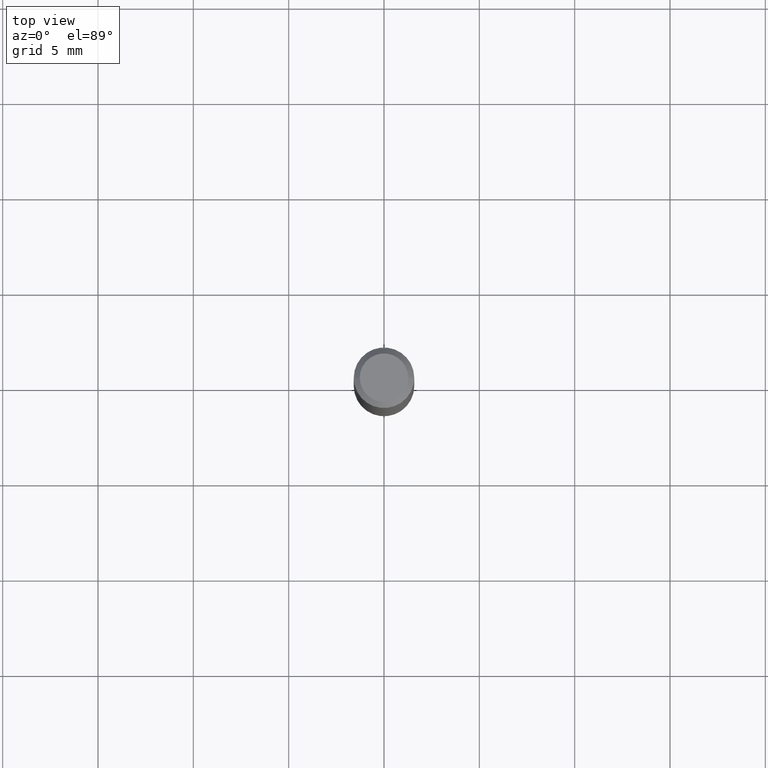
[diagram: clean part render]
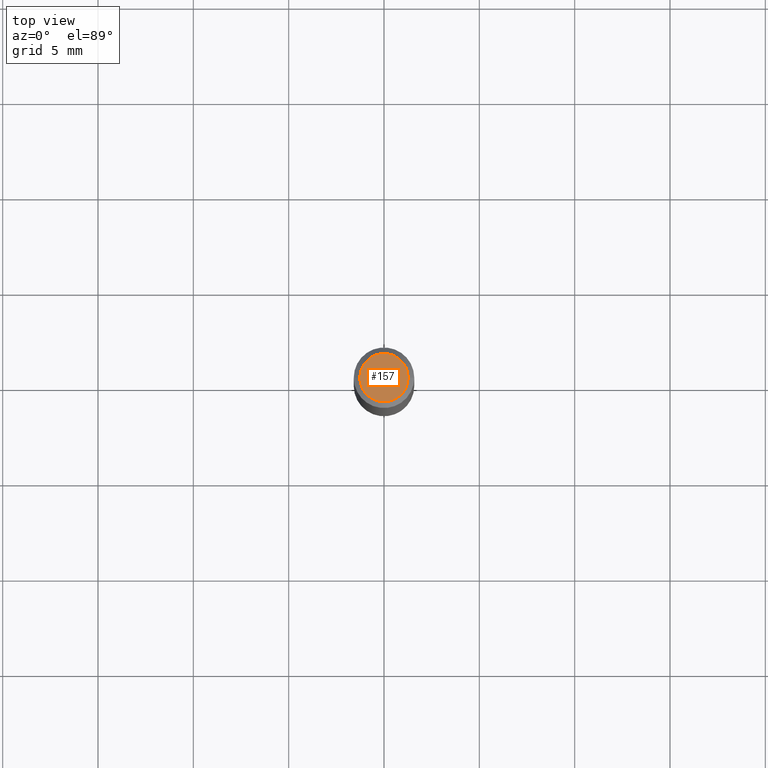
[diagram: same view with one face highlighted and labeled with its STEP entity id]
A machine part, top view. The second image highlights one B-rep face of the part: STEP entity #157.
In plain terms, the highlighted planar face has unit normal (0, -0, -1).
Its self-contained STEP definition (entity closure, byte-faithful):
#9 = ORIENTED_EDGE ( 'NONE', *, *, #75, .T. ) ;
#10 = CARTESIAN_POINT ( 'NONE',  ( 3.893286209682126177E-47, -5.558580879666067980E-33, -1.592040838891559689E-18 ) ) ;
#50 = EDGE_CURVE ( 'NONE', #115, #68, #438, .T. ) ;
#51 = ORIENTED_EDGE ( 'NONE', *, *, #50, .T. ) ;
#57 = CIRCLE ( 'NONE', #487, 0.04999999999999999584 ) ;
#68 = VERTEX_POINT ( 'NONE', #160 ) ;
#75 = EDGE_CURVE ( 'NONE', #68, #115, #57, .T. ) ;
#115 = VERTEX_POINT ( 'NONE', #230 ) ;
#126 = DIRECTION ( 'NONE',  ( 1.000000000000000000, -6.982962677686265922E-15, 4.875957971899673662E-29 ) ) ;
#139 = AXIS2_PLACEMENT_3D ( 'NONE', #364, #445, #300 ) ;
#157 = ADVANCED_FACE ( 'NONE', ( #353 ), #269, .F. ) ;
#159 = DIRECTION ( 'NONE',  ( -2.445468806185136597E-29, 3.491481338843145583E-15, 1.000000000000000000 ) ) ;
#160 = CARTESIAN_POINT ( 'NONE',  ( 0.04999999999999999584, -4.077247707424184212E-16, -1.592040838888913461E-18 ) ) ;
#230 = CARTESIAN_POINT ( 'NONE',  ( -0.04999999999999999584, 3.709698922520826725E-16, -1.592040838894077649E-18 ) ) ;
#269 = PLANE ( 'NONE',  #139 ) ;
#300 = DIRECTION ( 'NONE',  ( -1.000000000000000000, 6.982962677686265922E-15, -4.876176775795935793E-29 ) ) ;
#326 = AXIS2_PLACEMENT_3D ( 'NONE', #10, #159, #376 ) ;
#353 = FACE_OUTER_BOUND ( 'NONE', #374, .T. ) ;
#364 = CARTESIAN_POINT ( 'NONE',  ( 1.946643104841063088E-47, -2.779290439833033990E-33, -7.960204194457798443E-19 ) ) ;
#374 = EDGE_LOOP ( 'NONE', ( #51, #9 ) ) ;
#376 = DIRECTION ( 'NONE',  ( 1.000000000000000000, -6.982962677686265922E-15, 4.875957971899673662E-29 ) ) ;
#438 = CIRCLE ( 'NONE', #326, 0.04999999999999999584 ) ;
#445 = DIRECTION ( 'NONE',  ( 2.438088387897960049E-29, -3.491481338843145188E-15, -1.000000000000000000 ) ) ;
#459 = CARTESIAN_POINT ( 'NONE',  ( 3.893286209682126177E-47, -5.558580879666067980E-33, -1.592040838891559689E-18 ) ) ;
#461 = DIRECTION ( 'NONE',  ( -2.445468806185136597E-29, 3.491481338843145583E-15, 1.000000000000000000 ) ) ;
#487 = AXIS2_PLACEMENT_3D ( 'NONE', #459, #461, #126 ) ;